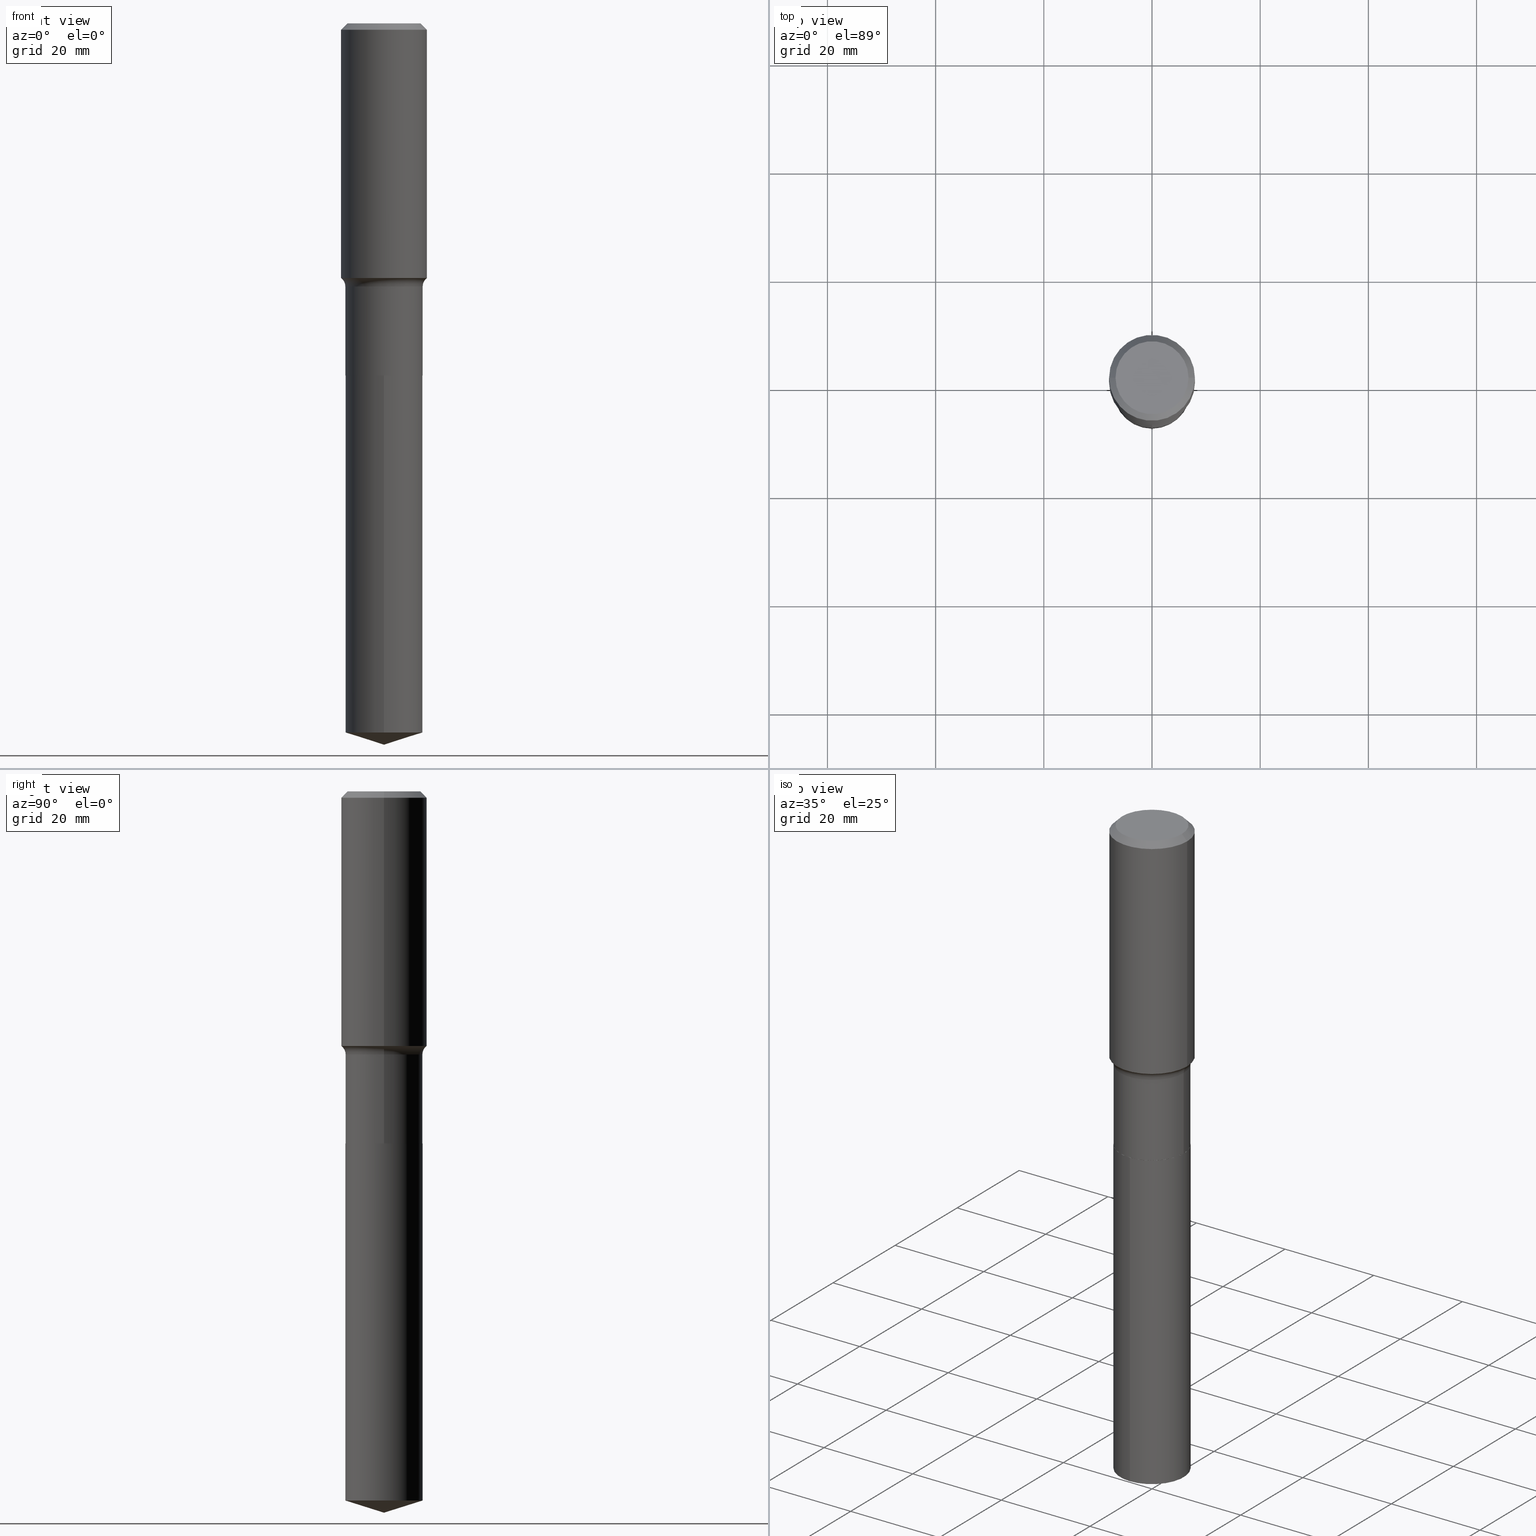
[diagram: canonical four-view strip — front | top / right | iso, engineering-drawing reading convention]
A machine part, canonical four-view strip (front | top / right | iso — engineering-drawing reading convention). The complete STEP part file that produces these views, byte-faithful:
ISO-10303-21;
HEADER;
FILE_DESCRIPTION (( 'STEP AP203' ),
    '1' );
FILE_NAME ('51538.STEP',
    '2024-04-19T13:00:37',
    ( '' ),
    ( '' ),
    'SwSTEP 2.0',
    'SolidWorks 2023',
    '' );
FILE_SCHEMA (( 'CONFIG_CONTROL_DESIGN' ));
ENDSEC;

DATA;
#1 = EDGE_CURVE ( 'NONE', #301, #126, #70, .T. ) ;
#2 = APPROVAL_ROLE ( '' ) ;
#3 = EDGE_LOOP ( 'NONE', ( #114, #359, #235, #174 ) ) ;
#4 = CIRCLE ( 'NONE', #176, 0.2812500000000000000 ) ;
#5 = LOCAL_TIME ( 9, 0, 37.00000000000000000, #145 ) ;
#6 = ORIENTED_EDGE ( 'NONE', *, *, #255, .F. ) ;
#7 = APPROVAL ( #336, 'UNSPECIFIED' ) ;
#8 = CARTESIAN_POINT ( 'NONE',  ( -1.591006383764330162E-46, 2.271535455632767854E-32, 6.505936120470315685E-18 ) ) ;
#9 = LINE ( 'NONE', #280, #89 ) ;
#10 = EDGE_CURVE ( 'NONE', #301, #485, #489, .T. ) ;
#11 = VERTEX_POINT ( 'NONE', #404 ) ;
#12 = AXIS2_PLACEMENT_3D ( 'NONE', #401, #289, #369 ) ;
#13 = PERSON_AND_ORGANIZATION ( #419, #436 ) ;
#14 = FACE_OUTER_BOUND ( 'NONE', #167, .T. ) ;
#15 = CC_DESIGN_DATE_AND_TIME_ASSIGNMENT ( #425, #427, ( #178 ) ) ;
#16 = ORIENTED_EDGE ( 'NONE', *, *, #151, .F. ) ;
#17 = CARTESIAN_POINT ( 'NONE',  ( 0.000000000000000000, 0.000000000000000000, 0.000000000000000000 ) ) ;
#18 = ORIENTED_EDGE ( 'NONE', *, *, #376, .F. ) ;
#19 = DIRECTION ( 'NONE',  ( -2.445458559499423150E-29, 3.491496012680292546E-15, 1.000000000000000000 ) ) ;
#20 = VERTEX_POINT ( 'NONE', #247 ) ;
#21 = VECTOR ( 'NONE', #42, 39.37007874015748143 ) ;
#22 = VECTOR ( 'NONE', #135, 39.37007874015748143 ) ;
#23 = DIRECTION ( 'NONE',  ( -2.445458559499423150E-29, 3.491496012680292546E-15, 1.000000000000000000 ) ) ;
#24 = ORIENTED_EDGE ( 'NONE', *, *, #448, .F. ) ;
#25 = CARTESIAN_POINT ( 'NONE',  ( 0.2656250000000000000, -2.064944296359970168E-15, 6.505936120484021373E-18 ) ) ;
#26 = VERTEX_POINT ( 'NONE', #214 ) ;
#27 = DIRECTION ( 'NONE',  ( -6.982962677686266711E-15, -1.000000000000000000, 3.885294924322507688E-15 ) ) ;
#28 = EDGE_CURVE ( 'NONE', #317, #476, #36, .T. ) ;
#29 = ORIENTED_EDGE ( 'NONE', *, *, #148, .F. ) ;
#30 = DIRECTION ( 'NONE',  ( -2.445468806185136597E-29, 3.491481338843145583E-15, 1.000000000000000000 ) ) ;
#31 = VECTOR ( 'NONE', #120, 39.37007874015748854 ) ;
#32 = VECTOR ( 'NONE', #216, 39.37007874015748143 ) ;
#33 = APPROVAL ( #47, 'UNSPECIFIED' ) ;
#34 = ORIENTED_EDGE ( 'NONE', *, *, #400, .F. ) ;
#35 = DIRECTION ( 'NONE',  ( -2.445458559499423150E-29, 3.491496012680292546E-15, 1.000000000000000000 ) ) ;
#36 = LINE ( 'NONE', #450, #21 ) ;
#37 = DIRECTION ( 'NONE',  ( 1.000000000000000000, -6.982962677686261977E-15, 0.000000000000000000 ) ) ;
#38 = DIRECTION ( 'NONE',  ( 2.438088387897960049E-29, -3.491481338843145188E-15, -1.000000000000000000 ) ) ;
#39 = LOCAL_TIME ( 9, 0, 37.00000000000000000, #468 ) ;
#40 = APPLICATION_PROTOCOL_DEFINITION ( 'international standard', 'config_control_design', 1994, #207 ) ;
#41 = COORDINATED_UNIVERSAL_TIME_OFFSET ( 5, 0, .BEHIND. ) ;
#42 = DIRECTION ( 'NONE',  ( -2.445468806185136877E-29, 3.491481338843145188E-15, 1.000000000000000000 ) ) ;
#43 = AXIS2_PLACEMENT_3D ( 'NONE', #342, #421, #266 ) ;
#44 = APPROVAL ( #308, 'UNSPECIFIED' ) ;
#45 = AXIS2_PLACEMENT_3D ( 'NONE', #170, #364, #325 ) ;
#46 = AXIS2_PLACEMENT_3D ( 'NONE', #362, #35, #27 ) ;
#47 = APPROVAL_STATUS ( 'not_yet_approved' ) ;
#48 = CARTESIAN_POINT ( 'NONE',  ( 6.266513815849411408E-29, -8.946920930785559988E-15, -2.562500000000000000 ) ) ;
#49 = APPROVAL_DATE_TIME ( #430, #33 ) ;
#50 = FACE_OUTER_BOUND ( 'NONE', #158, .T. ) ;
#51 = DIRECTION ( 'NONE',  ( -2.445458559499422870E-29, 3.491496012680292941E-15, 1.000000000000000000 ) ) ;
#52 = DIRECTION ( 'NONE',  ( -0.7071067811864267805, 7.493145998869918709E-15, 0.7071067811866682540 ) ) ;
#53 = EDGE_CURVE ( 'NONE', #476, #485, #482, .T. ) ;
#54 = EDGE_LOOP ( 'NONE', ( #61, #92, #478, #275 ) ) ;
#55 = PERSON_AND_ORGANIZATION_ROLE ( 'design_supplier' ) ;
#56 = FACE_OUTER_BOUND ( 'NONE', #441, .T. ) ;
#57 = EDGE_CURVE ( 'NONE', #301, #317, #423, .T. ) ;
#58 = EDGE_LOOP ( 'NONE', ( #238, #324, #182, #100 ) ) ;
#59 = DIRECTION ( 'NONE',  ( -2.445468806185136597E-29, 3.491481338843145583E-15, 1.000000000000000000 ) ) ;
#60 = ADVANCED_FACE ( 'NONE', ( #146 ), #462, .T. ) ;
#61 = ORIENTED_EDGE ( 'NONE', *, *, #261, .F. ) ;
#62 = CYLINDRICAL_SURFACE ( 'NONE', #12, 0.3125000000000001665 ) ;
#63 = ORIENTED_EDGE ( 'NONE', *, *, #400, .T. ) ;
#64 = CARTESIAN_POINT ( 'NONE',  ( 1.146313502899289786E-30, -1.636631877582734538E-16, -0.04687500000000028449 ) ) ;
#65 = UNCERTAINTY_MEASURE_WITH_UNIT (LENGTH_MEASURE( 1.000000000000000082E-05 ), #329, 'distance_accuracy_value', 'NONE');
#66 = ORIENTED_EDGE ( 'NONE', *, *, #1, .T. ) ;
#67 = DIRECTION ( 'NONE',  ( -2.445468806185136597E-29, 3.491481338843145583E-15, 1.000000000000000000 ) ) ;
#68 = DIRECTION ( 'NONE',  ( -6.982962677686266711E-15, -1.000000000000000000, 3.500519750498691021E-15 ) ) ;
#69 = CARTESIAN_POINT ( 'NONE',  ( 0.000000000000000000, 0.000000000000000000, 0.000000000000000000 ) ) ;
#70 = CIRCLE ( 'NONE', #141, 0.07799999999999995826 ) ;
#71 = DIRECTION ( 'NONE',  ( -2.445468806185136597E-29, 3.491481338843145583E-15, 1.000000000000000000 ) ) ;
#72 = DIRECTION ( 'NONE',  ( -1.000000000000000000, 6.982962677686265922E-15, -4.876176775795935793E-29 ) ) ;
#73 = CARTESIAN_POINT ( 'NONE',  ( 0.3592499999999999583, -9.196910994646720877E-15, -1.915600000000000191 ) ) ;
#74 = ADVANCED_FACE ( 'NONE', ( #113 ), #118, .F. ) ;
#75 = CONICAL_SURFACE ( 'NONE', #475, 0.3125000000000000000, 0.7853981633974452814 ) ;
#76 = DIRECTION ( 'NONE',  ( 1.000000000000000000, 0.000000000000000000, 0.000000000000000000 ) ) ;
#77 = PERSON_AND_ORGANIZATION ( #419, #436 ) ;
#78 = DIRECTION ( 'NONE',  ( -2.445468806185136597E-29, 3.491481338843145583E-15, 1.000000000000000000 ) ) ;
#79 = DIMENSIONAL_EXPONENTS ( 1.000000000000000000, 0.000000000000000000, 0.000000000000000000, 0.000000000000000000, 0.000000000000000000, 0.000000000000000000, 0.000000000000000000 ) ;
#80 = COORDINATED_UNIVERSAL_TIME_OFFSET ( 5, 0, .BEHIND. ) ;
#81 = ORIENTED_EDGE ( 'NONE', *, *, #124, .F. ) ;
#82 = ADVANCED_BREP_SHAPE_REPRESENTATION ( '51538', ( #265, #434, #368 ), #217 ) ;
#83 = CIRCLE ( 'NONE', #358, 0.2812500000000000000 ) ;
#84 = DATE_AND_TIME ( #433, #39 ) ;
#85 = DIRECTION ( 'NONE',  ( -2.445458559499423150E-29, 3.491496012680292546E-15, 1.000000000000000000 ) ) ;
#86 = DIRECTION ( 'NONE',  ( 1.000000000000000000, -6.982962677686268288E-15, 4.876176775795935793E-29 ) ) ;
#87 = DIRECTION ( 'NONE',  ( -2.445458559499422870E-29, 3.491496012680292941E-15, 1.000000000000000000 ) ) ;
#88 = ORIENTED_EDGE ( 'NONE', *, *, #124, .T. ) ;
#89 = VECTOR ( 'NONE', #152, 39.37007874015748143 ) ;
#90 = APPROVAL_DATE_TIME ( #84, #44 ) ;
#91 = LINE ( 'NONE', #192, #209 ) ;
#92 = ORIENTED_EDGE ( 'NONE', *, *, #148, .T. ) ;
#93 = LINE ( 'NONE', #104, #224 ) ;
#94 = VERTEX_POINT ( 'NONE', #221 ) ;
#95 = DIRECTION ( 'NONE',  ( 1.000000000000000000, -6.982962677686264344E-15, 0.000000000000000000 ) ) ;
#96 = ORIENTED_EDGE ( 'NONE', *, *, #334, .F. ) ;
#97 = ADVANCED_FACE ( 'NONE', ( #245 ), #473, .T. ) ;
#98 = CARTESIAN_POINT ( 'NONE',  ( 0.3125000000000001665, -8.652458232588906309E-15, -1.853162531281289160 ) ) ;
#99 = LOCAL_TIME ( 9, 0, 37.00000000000000000, #80 ) ;
#100 = ORIENTED_EDGE ( 'NONE', *, *, #53, .F. ) ;
#101 = CC_DESIGN_PERSON_AND_ORGANIZATION_ASSIGNMENT ( #13, #55, ( #484 ) ) ;
#102 = DIRECTION ( 'NONE',  ( -2.445468806185136597E-29, 3.491481338843145583E-15, 1.000000000000000000 ) ) ;
#103 = CARTESIAN_POINT ( 'NONE',  ( -8.343921234878027519E-28, 1.191301564753051446E-13, 34.12007874015748143 ) ) ;
#104 = CARTESIAN_POINT ( 'NONE',  ( 0.2807499999999999996, -1.090738770254597870E-14, -2.562500000000000000 ) ) ;
#105 = CARTESIAN_POINT ( 'NONE',  ( 4.684540045128248326E-29, -6.688281652687930319E-15, -1.915600000000000191 ) ) ;
#106 = DATE_TIME_ROLE ( 'creation_date' ) ;
#107 = ADVANCED_FACE ( 'NONE', ( #447 ), #330, .T. ) ;
#108 = DIRECTION ( 'NONE',  ( -2.445468806185136877E-29, 3.491481338843145188E-15, 1.000000000000000000 ) ) ;
#109 = CARTESIAN_POINT ( 'NONE',  ( -7.955031918821650812E-47, 1.135767727816383927E-32, 3.252968060235157842E-18 ) ) ;
#110 = AXIS2_PLACEMENT_3D ( 'NONE', #149, #343, #312 ) ;
#111 = AXIS2_PLACEMENT_3D ( 'NONE', #69, #442, #320 ) ;
#112 = DATE_AND_TIME ( #298, #5 ) ;
#113 = FACE_OUTER_BOUND ( 'NONE', #243, .T. ) ;
#114 = ORIENTED_EDGE ( 'NONE', *, *, #189, .T. ) ;
#115 = ORIENTED_EDGE ( 'NONE', *, *, #255, .T. ) ;
#116 = PERSON_AND_ORGANIZATION ( #419, #436 ) ;
#117 = DIRECTION ( 'NONE',  ( -2.445468806185136597E-29, 3.491481338843145583E-15, 1.000000000000000000 ) ) ;
#118 = TOROIDAL_SURFACE ( 'NONE', #339, 0.3592499999999999583, 0.07799999999999995826 ) ;
#119 = CONICAL_SURFACE ( 'NONE', #161, 0.2807499999999999996, 0.7853981633972775267 ) ;
#120 = DIRECTION ( 'NONE',  ( 6.776566513254258926E-15, 0.9537169507482290420, 0.3007057995042661247 ) ) ;
#121 = PRODUCT_DEFINITION_SHAPE ( 'NONE', 'NONE',  #257 ) ;
#122 = CARTESIAN_POINT ( 'NONE',  ( 0.2812499999999999445, -8.652239905787192831E-15, -1.915600000000000191 ) ) ;
#123 = VERTEX_POINT ( 'NONE', #154 ) ;
#124 = EDGE_CURVE ( 'NONE', #11, #165, #225, .T. ) ;
#125 = CARTESIAN_POINT ( 'NONE',  ( 0.000000000000000000, 0.000000000000000000, 0.000000000000000000 ) ) ;
#126 = VERTEX_POINT ( 'NONE', #122 ) ;
#127 = ORIENTED_EDGE ( 'NONE', *, *, #422, .F. ) ;
#128 = DIRECTION ( 'NONE',  ( -2.445468806185136597E-29, 3.491481338843145583E-15, 1.000000000000000000 ) ) ;
#129 = ORIENTED_EDGE ( 'NONE', *, *, #131, .F. ) ;
#130 = CARTESIAN_POINT ( 'NONE',  ( -0.3125000000000001665, -4.249836346561634092E-15, -1.853162531281289160 ) ) ;
#131 = EDGE_CURVE ( 'NONE', #317, #301, #190, .T. ) ;
#132 = ORIENTED_EDGE ( 'NONE', *, *, #189, .F. ) ;
#133 = VECTOR ( 'NONE', #51, 39.37007874015748143 ) ;
#134 = CIRCLE ( 'NONE', #299, 0.2812499999999999445 ) ;
#135 = DIRECTION ( 'NONE',  ( -0.7071067811865453523, 2.468850131082234184E-15, -0.7071067811865496822 ) ) ;
#136 = ADVANCED_FACE ( 'NONE', ( #309 ), #272, .T. ) ;
#137 = DIRECTION ( 'NONE',  ( 1.000000000000000000, -6.982962677686268288E-15, 0.000000000000000000 ) ) ;
#138 = EDGE_LOOP ( 'NONE', ( #196, #470, #281, #6 ) ) ;
#139 = DIRECTION ( 'NONE',  ( 2.445458559499422309E-29, -3.491496012680292941E-15, -1.000000000000000000 ) ) ;
#140 = ORIENTED_EDGE ( 'NONE', *, *, #349, .F. ) ;
#141 = AXIS2_PLACEMENT_3D ( 'NONE', #73, #208, #37 ) ;
#142 = CARTESIAN_POINT ( 'NONE',  ( 0.000000000000000000, 0.000000000000000000, 0.000000000000000000 ) ) ;
#143 = CIRCLE ( 'NONE', #390, 0.2812499999999999445 ) ;
#144 = MECHANICAL_CONTEXT ( 'NONE', #331, 'mechanical' ) ;
#145 = COORDINATED_UNIVERSAL_TIME_OFFSET ( 5, 0, .BEHIND. ) ;
#146 = FACE_OUTER_BOUND ( 'NONE', #138, .T. ) ;
#147 = ORIENTED_EDGE ( 'NONE', *, *, #467, .F. ) ;
#148 = EDGE_CURVE ( 'NONE', #361, #485, #9, .T. ) ;
#149 = CARTESIAN_POINT ( 'NONE',  ( 4.684540045128248326E-29, -6.688281652687930319E-15, -1.915600000000000191 ) ) ;
#150 = SECURITY_CLASSIFICATION_LEVEL ( 'unclassified' ) ;
#151 = EDGE_CURVE ( 'NONE', #437, #204, #276, .T. ) ;
#152 = DIRECTION ( 'NONE',  ( 0.7071067811865453523, -7.319954787623248157E-15, -0.7071067811865496822 ) ) ;
#153 = CIRCLE ( 'NONE', #315, 0.2656250000000000000 ) ;
#154 = CARTESIAN_POINT ( 'NONE',  ( -0.2812499999999999445, -5.818326977076751840E-15, -1.915600000000000191 ) ) ;
#155 = ORIENTED_EDGE ( 'NONE', *, *, #458, .F. ) ;
#156 = CARTESIAN_POINT ( 'NONE',  ( 1.998401444325407202E-15, 0.2812499999999818479, -5.161322215627787813 ) ) ;
#157 = EDGE_CURVE ( 'NONE', #165, #26, #226, .T. ) ;
#158 = EDGE_LOOP ( 'NONE', ( #313, #284, #292, #202 ) ) ;
#159 = DIRECTION ( 'NONE',  ( 1.000000000000000000, -6.982962677686265922E-15, 4.876176775795935793E-29 ) ) ;
#160 = ORIENTED_EDGE ( 'NONE', *, *, #422, .T. ) ;
#161 = AXIS2_PLACEMENT_3D ( 'NONE', #285, #102, #449 ) ;
#162 = CARTESIAN_POINT ( 'NONE',  ( 6.266513815849411408E-29, -8.946920930785559988E-15, -2.562500000000000000 ) ) ;
#163 = ORIENTED_EDGE ( 'NONE', *, *, #57, .F. ) ;
#164 = CYLINDRICAL_SURFACE ( 'NONE', #111, 0.2812499999999999445 ) ;
#165 = VERTEX_POINT ( 'NONE', #156 ) ;
#166 = CARTESIAN_POINT ( 'NONE',  ( 6.265291081446318607E-29, -8.945175190116137696E-15, -2.561999999999999389 ) ) ;
#167 = EDGE_LOOP ( 'NONE', ( #140, #311 ) ) ;
#168 = TOROIDAL_SURFACE ( 'NONE', #110, 0.3592499999999999583, 0.07799999999999995826 ) ;
#169 = CIRCLE ( 'NONE', #200, 0.2656250000000000000 ) ;
#170 = CARTESIAN_POINT ( 'NONE',  ( 6.266513815849411408E-29, -8.946920930785559988E-15, -2.562500000000000000 ) ) ;
#171 = LOCAL_TIME ( 9, 0, 37.00000000000000000, #41 ) ;
#172 = ORIENTED_EDGE ( 'NONE', *, *, #53, .T. ) ;
#173 = DIRECTION ( 'NONE',  ( -2.445468806185136597E-29, 3.491481338843145583E-15, 1.000000000000000000 ) ) ;
#174 = ORIENTED_EDGE ( 'NONE', *, *, #219, .F. ) ;
#175 = LINE ( 'NONE', #454, #32 ) ;
#176 = AXIS2_PLACEMENT_3D ( 'NONE', #223, #227, #388 ) ;
#177 = LINE ( 'NONE', #492, #491 ) ;
#178 = SECURITY_CLASSIFICATION ( '', '', #150 ) ;
#179 = CC_DESIGN_PERSON_AND_ORGANIZATION_ASSIGNMENT ( #420, #463, ( #484 ) ) ;
#180 = PERSON_AND_ORGANIZATION ( #419, #436 ) ;
#181 = EDGE_LOOP ( 'NONE', ( #81, #263, #367 ) ) ;
#182 = ORIENTED_EDGE ( 'NONE', *, *, #10, .T. ) ;
#183 = CIRCLE ( 'NONE', #490, 0.2812500000000000000 ) ;
#184 = AXIS2_PLACEMENT_3D ( 'NONE', #125, #435, #231 ) ;
#185 = ADVANCED_FACE ( 'NONE', ( #474 ), #168, .F. ) ;
#186 = DIRECTION ( 'NONE',  ( 1.000000000000000000, -6.982962677686266711E-15, 0.000000000000000000 ) ) ;
#187 = FACE_OUTER_BOUND ( 'NONE', #418, .T. ) ;
#188 = CARTESIAN_POINT ( 'NONE',  ( -8.343921234878027519E-28, 1.191301564753051446E-13, 34.12007874015748143 ) ) ;
#189 = EDGE_CURVE ( 'NONE', #432, #165, #183, .T. ) ;
#190 = CIRCLE ( 'NONE', #407, 0.3125000000000002220 ) ;
#191 = CIRCLE ( 'NONE', #288, 0.07799999999999995826 ) ;
#192 = CARTESIAN_POINT ( 'NONE',  ( -1.963958253099199798E-15, -0.2812500000000089373, -2.562499999999998668 ) ) ;
#193 = ADVANCED_FACE ( 'NONE', ( #56 ), #248, .T. ) ;
#194 = ORIENTED_EDGE ( 'NONE', *, *, #1, .F. ) ;
#195 = DIRECTION ( 'NONE',  ( 2.445468806185136597E-29, -3.491481338843145583E-15, -1.000000000000000000 ) ) ;
#196 = ORIENTED_EDGE ( 'NONE', *, *, #157, .F. ) ;
#197 = DIRECTION ( 'NONE',  ( -1.000000000000000000, 7.105427357601001859E-15, 0.000000000000000000 ) ) ;
#198 = AXIS2_PLACEMENT_3D ( 'NONE', #326, #363, #300 ) ;
#199 = VERTEX_POINT ( 'NONE', #346 ) ;
#200 = AXIS2_PLACEMENT_3D ( 'NONE', #477, #128, #282 ) ;
#201 = DIRECTION ( 'NONE',  ( 0.7071067811864267805, -2.468850131080992517E-15, 0.7071067811866682540 ) ) ;
#202 = ORIENTED_EDGE ( 'NONE', *, *, #10, .F. ) ;
#203 = DIRECTION ( 'NONE',  ( 1.000000000000000000, -6.982962677686266711E-15, 0.000000000000000000 ) ) ;
#204 = VERTEX_POINT ( 'NONE', #305 ) ;
#205 = DIRECTION ( 'NONE',  ( 1.000000000000000000, -6.982962677686264344E-15, 0.000000000000000000 ) ) ;
#206 = ADVANCED_FACE ( 'NONE', ( #14 ), #466, .F. ) ;
#207 = APPLICATION_CONTEXT ( 'configuration controlled 3d designs of mechanical parts and assemblies' ) ;
#208 = DIRECTION ( 'NONE',  ( -6.982962677686266711E-15, -1.000000000000000000, 3.491481338843145583E-15 ) ) ;
#209 = VECTOR ( 'NONE', #87, 39.37007874015748143 ) ;
#210 = APPROVAL_PERSON_ORGANIZATION ( #180, #7, #2 ) ;
#211 = FACE_OUTER_BOUND ( 'NONE', #399, .T. ) ;
#212 = DIRECTION ( 'NONE',  ( -2.445458559499423150E-29, 3.491496012680292546E-15, 1.000000000000000000 ) ) ;
#213 = CARTESIAN_POINT ( 'NONE',  ( -1.963958253099135506E-15, -0.2812500000000179301, -5.161322215627786036 ) ) ;
#214 = CARTESIAN_POINT ( 'NONE',  ( 1.998401444325408385E-15, 0.2812499999999911182, -2.562500000000000888 ) ) ;
#215 = LINE ( 'NONE', #250, #269 ) ;
#216 = DIRECTION ( 'NONE',  ( -2.445468806185136877E-29, 3.491481338843145188E-15, 1.000000000000000000 ) ) ;
#217 =( GEOMETRIC_REPRESENTATION_CONTEXT ( 3 ) GLOBAL_UNCERTAINTY_ASSIGNED_CONTEXT ( ( #65 ) ) GLOBAL_UNIT_ASSIGNED_CONTEXT ( ( #329, #374, #417 ) ) REPRESENTATION_CONTEXT ( 'NONE', 'WORKASPACE' ) );
#218 = APPLICATION_PROTOCOL_DEFINITION ( 'international standard', 'config_control_design', 1994, #331 ) ;
#219 = EDGE_CURVE ( 'NONE', #432, #20, #91, .T. ) ;
#220 = FACE_OUTER_BOUND ( 'NONE', #445, .T. ) ;
#221 = CARTESIAN_POINT ( 'NONE',  ( 0.2807499999999999996, -1.090738770254597870E-14, -2.562500000000000000 ) ) ;
#222 = PERSON_AND_ORGANIZATION_ROLE ( 'classification_officer' ) ;
#223 = CARTESIAN_POINT ( 'NONE',  ( 6.265291081446318607E-29, -8.945175190116137696E-15, -2.561999999999999389 ) ) ;
#224 = VECTOR ( 'NONE', #201, 39.37007874015748143 ) ;
#225 = LINE ( 'NONE', #354, #31 ) ;
#226 = LINE ( 'NONE', #392, #133 ) ;
#227 = DIRECTION ( 'NONE',  ( -2.445468806185136597E-29, 3.491481338843145583E-15, 1.000000000000000000 ) ) ;
#228 = AXIS2_PLACEMENT_3D ( 'NONE', #291, #59, #356 ) ;
#229 = EDGE_LOOP ( 'NONE', ( #294, #328, #408, #96 ) ) ;
#230 = APPROVAL_ROLE ( '' ) ;
#231 = DIRECTION ( 'NONE',  ( 1.000000000000000000, -6.982962677686266711E-15, 4.876176775795935232E-29 ) ) ;
#232 = EDGE_LOOP ( 'NONE', ( #472, #115 ) ) ;
#233 = DIRECTION ( 'NONE',  ( 1.000000000000000000, -6.982962677686269866E-15, 0.000000000000000000 ) ) ;
#234 = EDGE_CURVE ( 'NONE', #199, #204, #4, .T. ) ;
#235 = ORIENTED_EDGE ( 'NONE', *, *, #375, .F. ) ;
#236 = PLANE ( 'NONE',  #452 ) ;
#237 = AXIS2_PLACEMENT_3D ( 'NONE', #103, #212, #68 ) ;
#238 = ORIENTED_EDGE ( 'NONE', *, *, #28, .F. ) ;
#239 = CIRCLE ( 'NONE', #46, 0.2812500000000000000 ) ;
#240 = CC_DESIGN_APPROVAL ( #33, ( #484 ) ) ;
#241 = ADVANCED_FACE ( 'NONE', ( #350 ), #75, .T. ) ;
#242 = LINE ( 'NONE', #318, #22 ) ;
#243 = EDGE_LOOP ( 'NONE', ( #129, #395, #402, #194 ) ) ;
#244 = FACE_OUTER_BOUND ( 'NONE', #232, .T. ) ;
#245 = FACE_OUTER_BOUND ( 'NONE', #439, .T. ) ;
#246 = FACE_OUTER_BOUND ( 'NONE', #3, .T. ) ;
#247 = CARTESIAN_POINT ( 'NONE',  ( -1.963958253099199798E-15, -0.2812500000000089373, -2.562499999999998668 ) ) ;
#248 = CONICAL_SURFACE ( 'NONE', #457, 124.8659371009155450, 1.265363707695892792 ) ;
#249 = AXIS2_PLACEMENT_3D ( 'NONE', #64, #30, #203 ) ;
#250 = CARTESIAN_POINT ( 'NONE',  ( 0.2812499999999999445, -1.963958253099262512E-15, 1.371424718192606732E-29 ) ) ;
#251 = APPROVAL_PERSON_ORGANIZATION ( #116, #33, #267 ) ;
#252 = ADVANCED_FACE ( 'NONE', ( #50 ), #303, .T. ) ;
#253 = ORIENTED_EDGE ( 'NONE', *, *, #448, .T. ) ;
#254 = CARTESIAN_POINT ( 'NONE',  ( 4.684540045128248326E-29, -6.688281652687930319E-15, -1.915600000000000191 ) ) ;
#255 = EDGE_CURVE ( 'NONE', #26, #20, #341, .T. ) ;
#256 = CARTESIAN_POINT ( 'NONE',  ( -0.2807499999999999996, -6.949422972964966335E-15, -2.562500000000000000 ) ) ;
#257 = PRODUCT_DEFINITION ( 'UNKNOWN', '', #484, #444 ) ;
#258 = DIRECTION ( 'NONE',  ( 0.000000000000000000, 0.000000000000000000, 1.000000000000000000 ) ) ;
#259 = AXIS2_PLACEMENT_3D ( 'NONE', #323, #67, #205 ) ;
#260 = APPROVAL_DATE_TIME ( #112, #7 ) ;
#261 = EDGE_CURVE ( 'NONE', #361, #393, #153, .T. ) ;
#262 = DIRECTION ( 'NONE',  ( 2.445468806185136597E-29, -3.491481338843145583E-15, -1.000000000000000000 ) ) ;
#263 = ORIENTED_EDGE ( 'NONE', *, *, #458, .T. ) ;
#264 = CALENDAR_DATE ( 2024, 19, 4 ) ;
#265 = MANIFOLD_SOLID_BREP ( 'Body-Move/Copy2[1]', #304 ) ;
#266 = DIRECTION ( 'NONE',  ( 1.000000000000000000, -6.982962677686266711E-15, 0.000000000000000000 ) ) ;
#267 = APPROVAL_ROLE ( '' ) ;
#268 = DIRECTION ( 'NONE',  ( 1.000000000000000000, -6.982962677686268288E-15, 4.876286914311434227E-29 ) ) ;
#269 = VECTOR ( 'NONE', #456, 39.37007874015748143 ) ;
#270 = PERSON_AND_ORGANIZATION ( #419, #436 ) ;
#271 = PRODUCT ( '51538', '51538', '', ( #144 ) ) ;
#272 = CYLINDRICAL_SURFACE ( 'NONE', #387, 0.2812499999999999445 ) ;
#273 = ADVANCED_FACE ( 'NONE', ( #187 ), #119, .T. ) ;
#274 = DIRECTION ( 'NONE',  ( -6.982962677686266711E-15, -1.000000000000000000, 3.885294924322507688E-15 ) ) ;
#275 = ORIENTED_EDGE ( 'NONE', *, *, #351, .F. ) ;
#276 = LINE ( 'NONE', #428, #366 ) ;
#277 = CLOSED_SHELL ( 'NONE', ( #389, #241, #252, #74, #136, #365, #185, #321, #97, #429, #206, #273 ) ) ;
#278 = CC_DESIGN_APPROVAL ( #7, ( #257 ) ) ;
#279 = ORIENTED_EDGE ( 'NONE', *, *, #351, .T. ) ;
#280 = CARTESIAN_POINT ( 'NONE',  ( 0.3125000000000000000, -2.307568812061876870E-15, -0.04687500000000028449 ) ) ;
#281 = ORIENTED_EDGE ( 'NONE', *, *, #219, .T. ) ;
#282 = DIRECTION ( 'NONE',  ( 1.000000000000000000, -6.982962677686268288E-15, 4.876286914311434227E-29 ) ) ;
#283 = CC_DESIGN_PERSON_AND_ORGANIZATION_ASSIGNMENT ( #413, #373, ( #271 ) ) ;
#284 = ORIENTED_EDGE ( 'NONE', *, *, #28, .T. ) ;
#285 = CARTESIAN_POINT ( 'NONE',  ( 6.266513815849411408E-29, -8.946920930785559988E-15, -2.562500000000000000 ) ) ;
#286 = ORIENTED_EDGE ( 'NONE', *, *, #261, .T. ) ;
#287 = ADVANCED_FACE ( 'NONE', ( #244 ), #236, .F. ) ;
#288 = AXIS2_PLACEMENT_3D ( 'NONE', #360, #440, #197 ) ;
#289 = DIRECTION ( 'NONE',  ( -2.445468806185136597E-29, 3.491481338843145583E-15, 1.000000000000000000 ) ) ;
#290 = DIRECTION ( 'NONE',  ( 1.000000000000000000, -6.982962677686265133E-15, 4.883557194083112340E-29 ) ) ;
#291 = CARTESIAN_POINT ( 'NONE',  ( 6.266513815849411408E-29, -8.946920930785559988E-15, -2.562500000000000000 ) ) ;
#292 = ORIENTED_EDGE ( 'NONE', *, *, #371, .F. ) ;
#293 = DIRECTION ( 'NONE',  ( -6.982962677686266711E-15, -1.000000000000000000, 3.885294924322507688E-15 ) ) ;
#294 = ORIENTED_EDGE ( 'NONE', *, *, #349, .T. ) ;
#295 = CIRCLE ( 'NONE', #249, 0.3125000000000000000 ) ;
#296 = PLANE ( 'NONE',  #306 ) ;
#297 = CARTESIAN_POINT ( 'NONE',  ( 0.3125000000000000000, -2.345839024535231998E-15, -0.04687500000000028449 ) ) ;
#298 = CALENDAR_DATE ( 2024, 19, 4 ) ;
#299 = AXIS2_PLACEMENT_3D ( 'NONE', #254, #335, #414 ) ;
#300 = DIRECTION ( 'NONE',  ( -6.982962677686266711E-15, -1.000000000000000000, 3.885294924322507688E-15 ) ) ;
#301 = VERTEX_POINT ( 'NONE', #98 ) ;
#302 = SHAPE_DEFINITION_REPRESENTATION ( #121, #82 ) ;
#303 = CYLINDRICAL_SURFACE ( 'NONE', #184, 0.3125000000000001665 ) ;
#304 = CLOSED_SHELL ( 'NONE', ( #396, #193, #107, #60, #287 ) ) ;
#305 = CARTESIAN_POINT ( 'NONE',  ( -0.2812500000000000555, -5.818326977076751051E-15, -2.561999999999999389 ) ) ;
#306 = AXIS2_PLACEMENT_3D ( 'NONE', #109, #38, #72 ) ;
#307 = EDGE_CURVE ( 'NONE', #165, #432, #459, .T. ) ;
#308 = APPROVAL_STATUS ( 'not_yet_approved' ) ;
#309 = FACE_OUTER_BOUND ( 'NONE', #480, .T. ) ;
#310 = EDGE_CURVE ( 'NONE', #317, #123, #191, .T. ) ;
#311 = ORIENTED_EDGE ( 'NONE', *, *, #406, .F. ) ;
#312 = DIRECTION ( 'NONE',  ( 1.000000000000000000, -6.982962677686265133E-15, 4.883557194083112340E-29 ) ) ;
#313 = ORIENTED_EDGE ( 'NONE', *, *, #57, .T. ) ;
#314 = DIRECTION ( 'NONE',  ( -2.445468806185136597E-29, 3.491481338843145583E-15, 1.000000000000000000 ) ) ;
#315 = AXIS2_PLACEMENT_3D ( 'NONE', #8, #117, #268 ) ;
#316 = AXIS2_PLACEMENT_3D ( 'NONE', #162, #403, #95 ) ;
#317 = VERTEX_POINT ( 'NONE', #130 ) ;
#318 = CARTESIAN_POINT ( 'NONE',  ( -0.3125000000000000000, 2.018512649018685091E-15, -0.04687500000000028449 ) ) ;
#319 = ORIENTED_EDGE ( 'NONE', *, *, #334, .T. ) ;
#320 = DIRECTION ( 'NONE',  ( 1.000000000000000000, -6.982962677686268288E-15, 4.876176775795935793E-29 ) ) ;
#321 = ADVANCED_FACE ( 'NONE', ( #479 ), #62, .T. ) ;
#322 = ORIENTED_EDGE ( 'NONE', *, *, #310, .F. ) ;
#323 = CARTESIAN_POINT ( 'NONE',  ( 6.266513815849411408E-29, -8.946920930785559988E-15, -2.562500000000000000 ) ) ;
#324 = ORIENTED_EDGE ( 'NONE', *, *, #131, .T. ) ;
#325 = DIRECTION ( 'NONE',  ( -6.982962677686266711E-15, -1.000000000000000000, 3.885294924322507688E-15 ) ) ;
#326 = CARTESIAN_POINT ( 'NONE',  ( 6.266513815849411408E-29, -8.946920930785559988E-15, -2.562500000000000000 ) ) ;
#327 = DIRECTION ( 'NONE',  ( 6.982962677686265922E-15, 1.000000000000000000, -3.491496012680292941E-15 ) ) ;
#328 = ORIENTED_EDGE ( 'NONE', *, *, #151, .T. ) ;
#329 =( CONVERSION_BASED_UNIT ( 'INCH', #332 ) LENGTH_UNIT ( ) NAMED_UNIT ( #79 ) );
#330 = CONICAL_SURFACE ( 'NONE', #237, 124.8659371009155450, 1.265363707695892792 ) ;
#331 = APPLICATION_CONTEXT ( 'configuration controlled 3d designs of mechanical parts and assemblies' ) ;
#332 = LENGTH_MEASURE_WITH_UNIT ( LENGTH_MEASURE( 0.02539999999999999897 ), #416 );
#333 = CC_DESIGN_PERSON_AND_ORGANIZATION_ASSIGNMENT ( #77, #377, ( #257 ) ) ;
#334 = EDGE_CURVE ( 'NONE', #94, #199, #93, .T. ) ;
#335 = DIRECTION ( 'NONE',  ( -2.445468806185136597E-29, 3.491481338843145583E-15, 1.000000000000000000 ) ) ;
#336 = APPROVAL_STATUS ( 'not_yet_approved' ) ;
#337 = CARTESIAN_POINT ( 'NONE',  ( 1.146313502899289786E-30, -1.636631877582734538E-16, -0.04687500000000028449 ) ) ;
#338 = PRODUCT_RELATED_PRODUCT_CATEGORY ( 'detail', '', ( #271 ) ) ;
#339 = AXIS2_PLACEMENT_3D ( 'NONE', #105, #78, #290 ) ;
#340 = CALENDAR_DATE ( 2024, 19, 4 ) ;
#341 = CIRCLE ( 'NONE', #379, 0.2812500000000000000 ) ;
#342 = CARTESIAN_POINT ( 'NONE',  ( 4.531851163039479830E-29, -6.470282395811947962E-15, -1.853162531281289160 ) ) ;
#343 = DIRECTION ( 'NONE',  ( -2.445468806185136597E-29, 3.491481338843145583E-15, 1.000000000000000000 ) ) ;
#344 = CARTESIAN_POINT ( 'NONE',  ( 4.531851163039479830E-29, -6.470282395811947962E-15, -1.853162531281289160 ) ) ;
#345 = AXIS2_PLACEMENT_3D ( 'NONE', #337, #71, #372 ) ;
#346 = CARTESIAN_POINT ( 'NONE',  ( 0.2812500000000000000, -1.090913344321540100E-14, -2.561999999999999389 ) ) ;
#347 = CIRCLE ( 'NONE', #316, 0.2807499999999999996 ) ;
#348 = CC_DESIGN_APPROVAL ( #44, ( #178 ) ) ;
#349 = EDGE_CURVE ( 'NONE', #94, #437, #347, .T. ) ;
#350 = FACE_OUTER_BOUND ( 'NONE', #54, .T. ) ;
#351 = EDGE_CURVE ( 'NONE', #393, #476, #242, .T. ) ;
#352 = ORIENTED_EDGE ( 'NONE', *, *, #406, .T. ) ;
#353 = PERSON_AND_ORGANIZATION ( #419, #436 ) ;
#354 = CARTESIAN_POINT ( 'NONE',  ( 1.283871041212436273E-28, -1.833027886315615630E-14, -5.250000000000000000 ) ) ;
#355 = ORIENTED_EDGE ( 'NONE', *, *, #461, .F. ) ;
#356 = DIRECTION ( 'NONE',  ( 1.000000000000000000, -6.982962677686264344E-15, 0.000000000000000000 ) ) ;
#357 = AXIS2_PLACEMENT_3D ( 'NONE', #378, #262, #487 ) ;
#358 = AXIS2_PLACEMENT_3D ( 'NONE', #166, #173, #233 ) ;
#359 = ORIENTED_EDGE ( 'NONE', *, *, #157, .T. ) ;
#360 = CARTESIAN_POINT ( 'NONE',  ( -0.3592499999999999583, -4.135656874469770698E-15, -1.915600000000000191 ) ) ;
#361 = VERTEX_POINT ( 'NONE', #25 ) ;
#362 = CARTESIAN_POINT ( 'NONE',  ( 6.266513815849411408E-29, -8.946920930785559988E-15, -2.562500000000000000 ) ) ;
#363 = DIRECTION ( 'NONE',  ( -2.445458559499423150E-29, 3.491496012680292546E-15, 1.000000000000000000 ) ) ;
#364 = DIRECTION ( 'NONE',  ( -2.445458559499423150E-29, 3.491496012680292546E-15, 1.000000000000000000 ) ) ;
#365 = ADVANCED_FACE ( 'NONE', ( #211 ), #164, .T. ) ;
#366 = VECTOR ( 'NONE', #52, 39.37007874015748143 ) ;
#367 = ORIENTED_EDGE ( 'NONE', *, *, #307, .F. ) ;
#368 = AXIS2_PLACEMENT_3D ( 'NONE', #142, #258, #76 ) ;
#369 = DIRECTION ( 'NONE',  ( 1.000000000000000000, -6.982962677686266711E-15, 4.876176775795935232E-29 ) ) ;
#370 = ORIENTED_EDGE ( 'NONE', *, *, #461, .T. ) ;
#371 = EDGE_CURVE ( 'NONE', #485, #476, #295, .T. ) ;
#372 = DIRECTION ( 'NONE',  ( 1.000000000000000000, -6.982962677686266711E-15, 0.000000000000000000 ) ) ;
#373 = PERSON_AND_ORGANIZATION_ROLE ( 'design_owner' ) ;
#374 =( NAMED_UNIT ( * ) PLANE_ANGLE_UNIT ( ) SI_UNIT ( $, .RADIAN. ) );
#375 = EDGE_CURVE ( 'NONE', #20, #26, #239, .T. ) ;
#376 = EDGE_CURVE ( 'NONE', #204, #199, #83, .T. ) ;
#377 = PERSON_AND_ORGANIZATION_ROLE ( 'creator' ) ;
#378 = CARTESIAN_POINT ( 'NONE',  ( 1.146313502899289786E-30, -1.636631877582734538E-16, -0.04687500000000028449 ) ) ;
#379 = AXIS2_PLACEMENT_3D ( 'NONE', #48, #85, #464 ) ;
#380 = CALENDAR_DATE ( 2024, 19, 4 ) ;
#381 = LOCAL_TIME ( 9, 0, 37.00000000000000000, #386 ) ;
#382 = CARTESIAN_POINT ( 'NONE',  ( 1.146313502899289786E-30, -1.636631877582734538E-16, -0.04687500000000028449 ) ) ;
#383 = CARTESIAN_POINT ( 'NONE',  ( 1.262182584767364047E-28, -1.802069833431494357E-14, -5.161322215627786925 ) ) ;
#384 = CC_DESIGN_PERSON_AND_ORGANIZATION_ASSIGNMENT ( #353, #222, ( #178 ) ) ;
#385 = DIRECTION ( 'NONE',  ( -2.445458559499423150E-29, 3.491496012680292546E-15, 1.000000000000000000 ) ) ;
#386 = COORDINATED_UNIVERSAL_TIME_OFFSET ( 5, 0, .BEHIND. ) ;
#387 = AXIS2_PLACEMENT_3D ( 'NONE', #17, #314, #86 ) ;
#388 = DIRECTION ( 'NONE',  ( 1.000000000000000000, -6.982962677686269866E-15, 0.000000000000000000 ) ) ;
#389 = ADVANCED_FACE ( 'NONE', ( #446 ), #483, .T. ) ;
#390 = AXIS2_PLACEMENT_3D ( 'NONE', #488, #486, #137 ) ;
#391 = ORIENTED_EDGE ( 'NONE', *, *, #376, .T. ) ;
#392 = CARTESIAN_POINT ( 'NONE',  ( 1.998401444325344093E-15, 0.2812499999999910627, -2.562500000000000888 ) ) ;
#393 = VERTEX_POINT ( 'NONE', #481 ) ;
#394 = CYLINDRICAL_SURFACE ( 'NONE', #45, 0.2812500000000000000 ) ;
#395 = ORIENTED_EDGE ( 'NONE', *, *, #310, .T. ) ;
#396 = ADVANCED_FACE ( 'NONE', ( #246 ), #394, .T. ) ;
#397 = CARTESIAN_POINT ( 'NONE',  ( 1.262182584767364047E-28, -1.802069833431494357E-14, -5.161322215627786925 ) ) ;
#398 = AXIS2_PLACEMENT_3D ( 'NONE', #469, #431, #159 ) ;
#399 = EDGE_LOOP ( 'NONE', ( #24, #391, #370, #147 ) ) ;
#400 = EDGE_CURVE ( 'NONE', #126, #123, #143, .T. ) ;
#401 = CARTESIAN_POINT ( 'NONE',  ( 0.000000000000000000, 0.000000000000000000, 0.000000000000000000 ) ) ;
#402 = ORIENTED_EDGE ( 'NONE', *, *, #467, .T. ) ;
#403 = DIRECTION ( 'NONE',  ( -2.445468806185136597E-29, 3.491481338843145583E-15, 1.000000000000000000 ) ) ;
#404 = CARTESIAN_POINT ( 'NONE',  ( 1.283865743737197294E-28, -1.833035406657153183E-14, -5.250000000000000000 ) ) ;
#405 = CARTESIAN_POINT ( 'NONE',  ( 6.266513815849411408E-29, -8.946920930785559988E-15, -2.562500000000000000 ) ) ;
#406 = EDGE_CURVE ( 'NONE', #437, #94, #424, .T. ) ;
#407 = AXIS2_PLACEMENT_3D ( 'NONE', #344, #426, #186 ) ;
#408 = ORIENTED_EDGE ( 'NONE', *, *, #234, .F. ) ;
#409 = AXIS2_PLACEMENT_3D ( 'NONE', #397, #23, #293 ) ;
#410 = DIRECTION ( 'NONE',  ( -6.659769872151635244E-15, -0.9537169507482271547, 0.3007057995042727860 ) ) ;
#411 = CC_DESIGN_DATE_AND_TIME_ASSIGNMENT ( #451, #106, ( #257 ) ) ;
#412 = EDGE_LOOP ( 'NONE', ( #322, #163, #66, #63 ) ) ;
#413 = PERSON_AND_ORGANIZATION ( #419, #436 ) ;
#414 = DIRECTION ( 'NONE',  ( 1.000000000000000000, -6.982962677686268288E-15, 0.000000000000000000 ) ) ;
#415 = VECTOR ( 'NONE', #108, 39.37007874015748143 ) ;
#416 =( LENGTH_UNIT ( ) NAMED_UNIT ( * ) SI_UNIT ( $, .METRE. ) );
#417 =( NAMED_UNIT ( * ) SI_UNIT ( $, .STERADIAN. ) SOLID_ANGLE_UNIT ( ) );
#418 = EDGE_LOOP ( 'NONE', ( #16, #352, #319, #18 ) ) ;
#419 = PERSON ( 'UNSPECIFIED', 'UNSPECIFIED', 'UNSPECIFIED', ('UNSPECIFIED'), ('UNSPECIFIED'), ('UNSPECIFIED') ) ;
#420 = PERSON_AND_ORGANIZATION ( #419, #436 ) ;
#421 = DIRECTION ( 'NONE',  ( -2.445468806185136597E-29, 3.491481338843145583E-15, 1.000000000000000000 ) ) ;
#422 = EDGE_CURVE ( 'NONE', #393, #361, #169, .T. ) ;
#423 = CIRCLE ( 'NONE', #43, 0.3125000000000002220 ) ;
#424 = CIRCLE ( 'NONE', #228, 0.2807499999999999996 ) ;
#425 = DATE_AND_TIME ( #380, #381 ) ;
#426 = DIRECTION ( 'NONE',  ( -2.445468806185136597E-29, 3.491481338843145583E-15, 1.000000000000000000 ) ) ;
#427 = DATE_TIME_ROLE ( 'classification_date' ) ;
#428 = CARTESIAN_POINT ( 'NONE',  ( -0.2807499999999999996, -6.952072200139078325E-15, -2.562500000000000000 ) ) ;
#429 = ADVANCED_FACE ( 'NONE', ( #220 ), #296, .F. ) ;
#430 = DATE_AND_TIME ( #264, #99 ) ;
#431 = DIRECTION ( 'NONE',  ( -2.438088387897960049E-29, 3.491481338843145188E-15, 1.000000000000000000 ) ) ;
#432 = VERTEX_POINT ( 'NONE', #213 ) ;
#433 = CALENDAR_DATE ( 2024, 19, 4 ) ;
#434 = MANIFOLD_SOLID_BREP ( 'Body-Move/Copy2[2]', #277 ) ;
#435 = DIRECTION ( 'NONE',  ( -2.445468806185136597E-29, 3.491481338843145583E-15, 1.000000000000000000 ) ) ;
#436 = ORGANIZATION ( 'UNSPECIFIED', 'UNSPECIFIED', '' ) ;
#437 = VERTEX_POINT ( 'NONE', #256 ) ;
#438 = DIRECTION ( 'NONE',  ( -6.982962677686266711E-15, -1.000000000000000000, 3.500519750498691021E-15 ) ) ;
#439 = EDGE_LOOP ( 'NONE', ( #29, #127, #279, #172 ) ) ;
#440 = DIRECTION ( 'NONE',  ( 7.105427357601001859E-15, 1.000000000000000000, -3.491481338843145583E-15 ) ) ;
#441 = EDGE_LOOP ( 'NONE', ( #155, #88, #132 ) ) ;
#442 = DIRECTION ( 'NONE',  ( -2.445468806185136597E-29, 3.491481338843145583E-15, 1.000000000000000000 ) ) ;
#443 = CC_DESIGN_SECURITY_CLASSIFICATION ( #178, ( #484 ) ) ;
#444 = DESIGN_CONTEXT ( 'detailed design', #207, 'design' ) ;
#445 = EDGE_LOOP ( 'NONE', ( #160, #286 ) ) ;
#446 = FACE_OUTER_BOUND ( 'NONE', #229, .T. ) ;
#447 = FACE_OUTER_BOUND ( 'NONE', #181, .T. ) ;
#448 = EDGE_CURVE ( 'NONE', #204, #123, #175, .T. ) ;
#449 = DIRECTION ( 'NONE',  ( 1.000000000000000000, -6.982962677686264344E-15, 0.000000000000000000 ) ) ;
#450 = CARTESIAN_POINT ( 'NONE',  ( -0.3125000000000001665, 2.220446049250314264E-15, -1.537167215704658792E-29 ) ) ;
#451 = DATE_AND_TIME ( #340, #171 ) ;
#452 = AXIS2_PLACEMENT_3D ( 'NONE', #405, #139, #327 ) ;
#453 = CARTESIAN_POINT ( 'NONE',  ( 0.3125000000000001665, -2.182175836776959530E-15, 1.523805242436230636E-29 ) ) ;
#454 = CARTESIAN_POINT ( 'NONE',  ( -0.2812499999999999445, 1.998401444325281378E-15, -1.383450494134191988E-29 ) ) ;
#455 = CARTESIAN_POINT ( 'NONE',  ( -0.3125000000000000000, -1.096526742534796345E-15, -0.04687500000000028449 ) ) ;
#456 = DIRECTION ( 'NONE',  ( -2.445468806185136877E-29, 3.491481338843145188E-15, 1.000000000000000000 ) ) ;
#457 = AXIS2_PLACEMENT_3D ( 'NONE', #188, #385, #438 ) ;
#458 = EDGE_CURVE ( 'NONE', #11, #432, #177, .T. ) ;
#459 = CIRCLE ( 'NONE', #409, 0.2812500000000000000 ) ;
#460 = ORIENTED_EDGE ( 'NONE', *, *, #234, .T. ) ;
#461 = EDGE_CURVE ( 'NONE', #199, #126, #215, .T. ) ;
#462 = CYLINDRICAL_SURFACE ( 'NONE', #198, 0.2812500000000000000 ) ;
#463 = PERSON_AND_ORGANIZATION_ROLE ( 'creator' ) ;
#464 = DIRECTION ( 'NONE',  ( -6.982962677686266711E-15, -1.000000000000000000, 3.885294924322507688E-15 ) ) ;
#465 = APPROVAL_PERSON_ORGANIZATION ( #270, #44, #230 ) ;
#466 = PLANE ( 'NONE',  #398 ) ;
#467 = EDGE_CURVE ( 'NONE', #123, #126, #134, .T. ) ;
#468 = COORDINATED_UNIVERSAL_TIME_OFFSET ( 5, 0, .BEHIND. ) ;
#469 = CARTESIAN_POINT ( 'NONE',  ( 6.266513815849411408E-29, -8.946920930785559988E-15, -2.562500000000000000 ) ) ;
#470 = ORIENTED_EDGE ( 'NONE', *, *, #307, .T. ) ;
#471 = DIRECTION ( 'NONE',  ( -1.000000000000000000, 6.982962677686266711E-15, 0.000000000000000000 ) ) ;
#472 = ORIENTED_EDGE ( 'NONE', *, *, #375, .T. ) ;
#473 = CONICAL_SURFACE ( 'NONE', #357, 0.3125000000000000000, 0.7853981633974452814 ) ;
#474 = FACE_OUTER_BOUND ( 'NONE', #412, .T. ) ;
#475 = AXIS2_PLACEMENT_3D ( 'NONE', #382, #195, #471 ) ;
#476 = VERTEX_POINT ( 'NONE', #455 ) ;
#477 = CARTESIAN_POINT ( 'NONE',  ( -1.591006383764330162E-46, 2.271535455632767854E-32, 6.505936120470315685E-18 ) ) ;
#478 = ORIENTED_EDGE ( 'NONE', *, *, #371, .T. ) ;
#479 = FACE_OUTER_BOUND ( 'NONE', #58, .T. ) ;
#480 = EDGE_LOOP ( 'NONE', ( #460, #253, #34, #355 ) ) ;
#481 = CARTESIAN_POINT ( 'NONE',  ( -0.2656250000000000000, 1.936681055139549843E-15, 6.505936120457058354E-18 ) ) ;
#482 = CIRCLE ( 'NONE', #345, 0.3125000000000000000 ) ;
#483 = CONICAL_SURFACE ( 'NONE', #259, 0.2807499999999999996, 0.7853981633972775267 ) ;
#484 = PRODUCT_DEFINITION_FORMATION_WITH_SPECIFIED_SOURCE ( 'ANY', '', #271, .NOT_KNOWN. ) ;
#485 = VERTEX_POINT ( 'NONE', #297 ) ;
#486 = DIRECTION ( 'NONE',  ( -2.445468806185136597E-29, 3.491481338843145583E-15, 1.000000000000000000 ) ) ;
#487 = DIRECTION ( 'NONE',  ( -1.000000000000000000, 6.982962677686266711E-15, 0.000000000000000000 ) ) ;
#488 = CARTESIAN_POINT ( 'NONE',  ( 4.684540045128248326E-29, -6.688281652687930319E-15, -1.915600000000000191 ) ) ;
#489 = LINE ( 'NONE', #453, #415 ) ;
#490 = AXIS2_PLACEMENT_3D ( 'NONE', #383, #19, #274 ) ;
#491 = VECTOR ( 'NONE', #410, 39.37007874015748143 ) ;
#492 = CARTESIAN_POINT ( 'NONE',  ( 1.283865743737197294E-28, -1.833035406657153814E-14, -5.250000000000000000 ) ) ;
ENDSEC;
END-ISO-10303-21;
